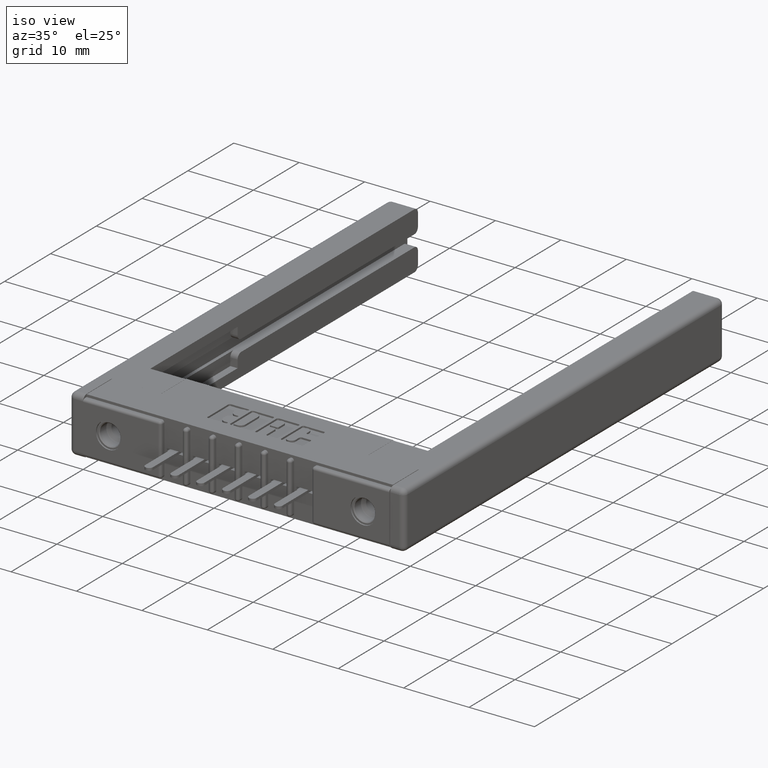
[diagram: clean part render]
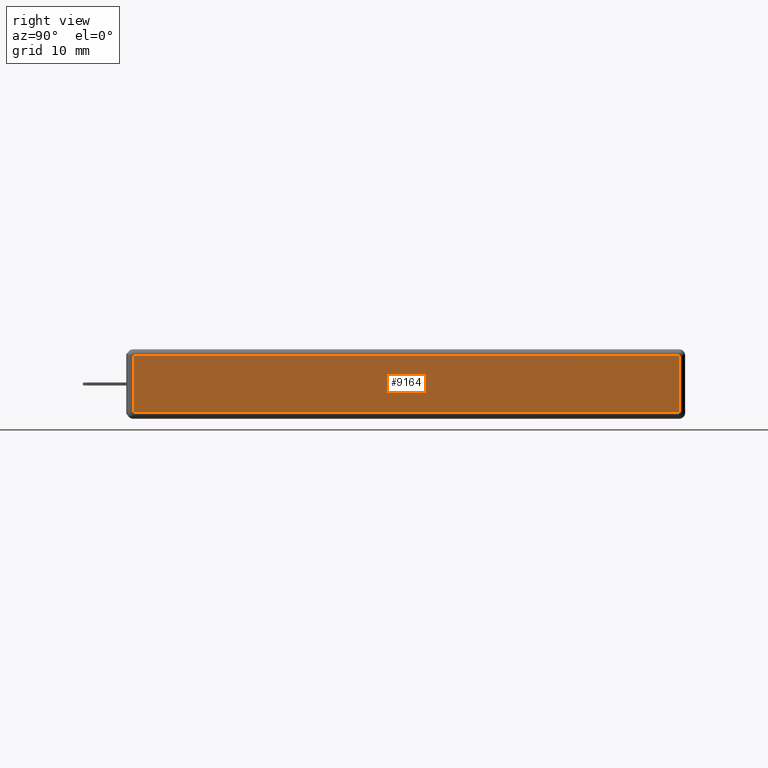
[diagram: tour spotlight — one face highlighted and labeled with its STEP entity id]
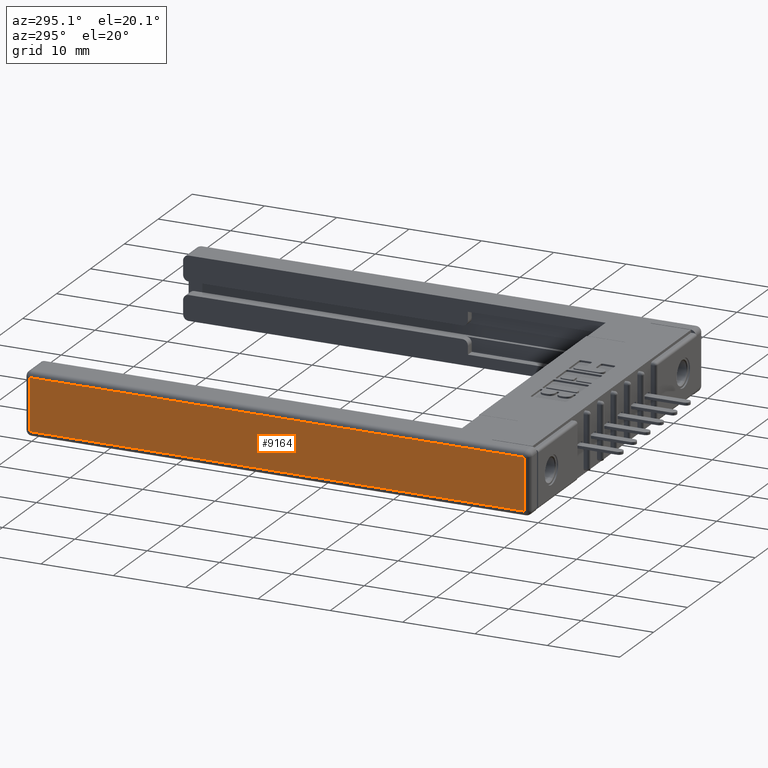
[diagram: tour spotlight — one face highlighted and labeled with its STEP entity id]
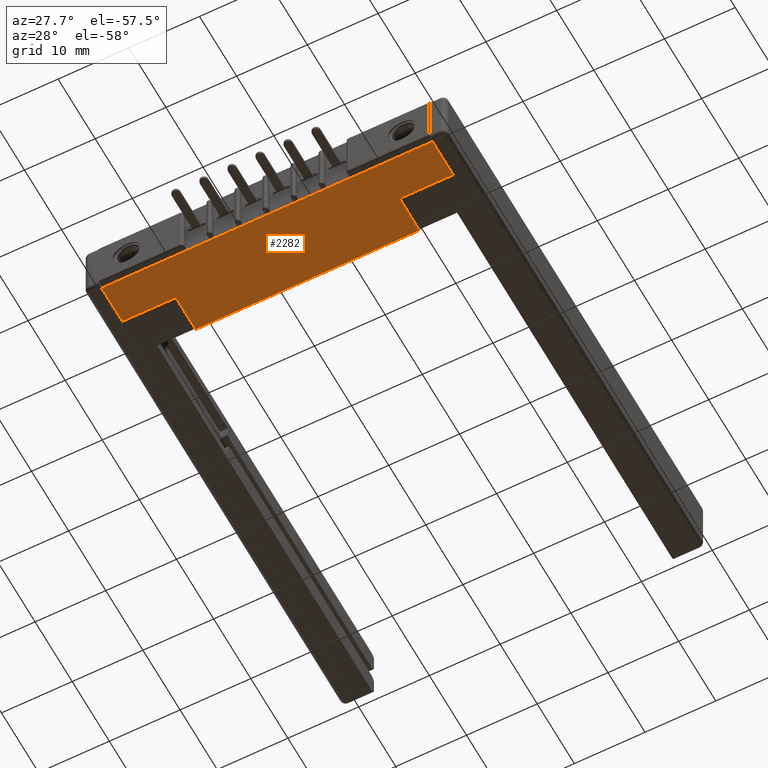
[diagram: tour spotlight — one face highlighted and labeled with its STEP entity id]
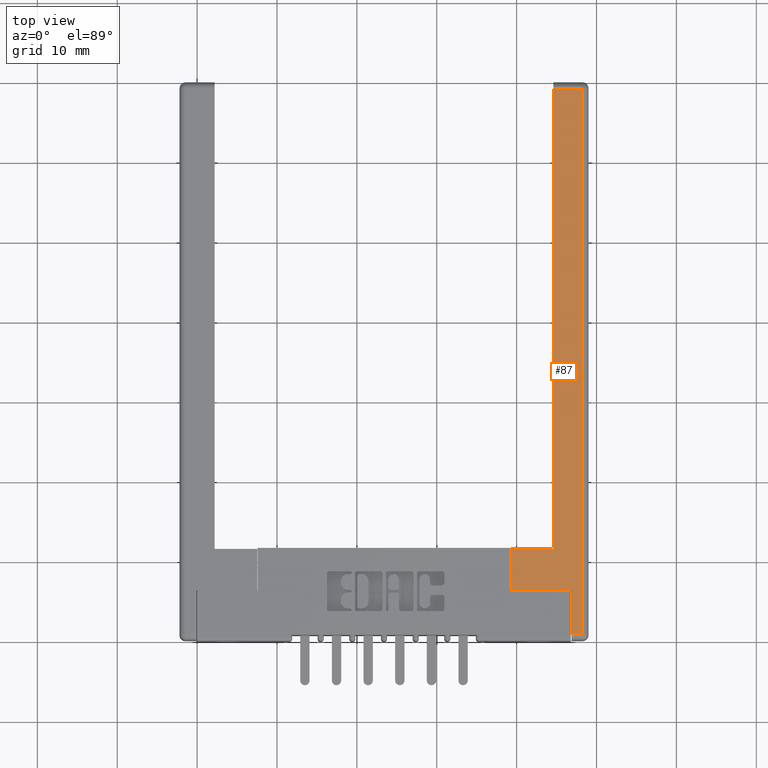
[diagram: tour spotlight — one face highlighted and labeled with its STEP entity id]
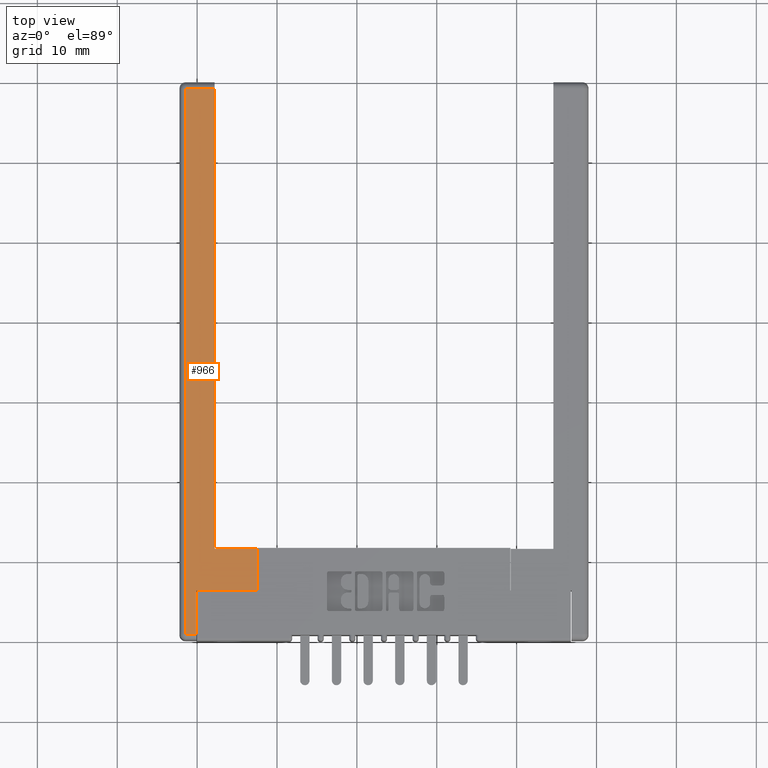
[diagram: tour spotlight — one face highlighted and labeled with its STEP entity id]
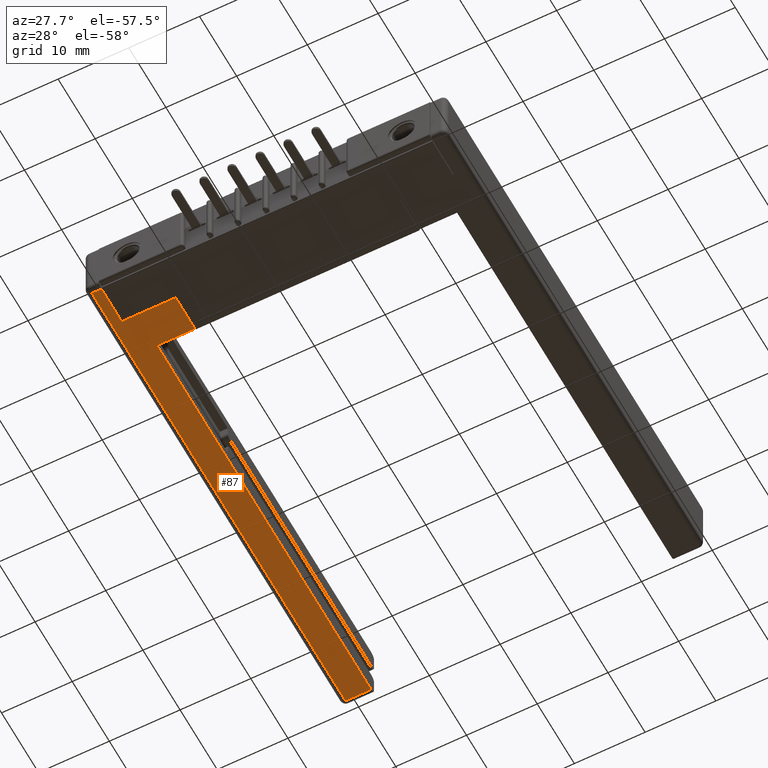
[diagram: tour spotlight — one face highlighted and labeled with its STEP entity id]
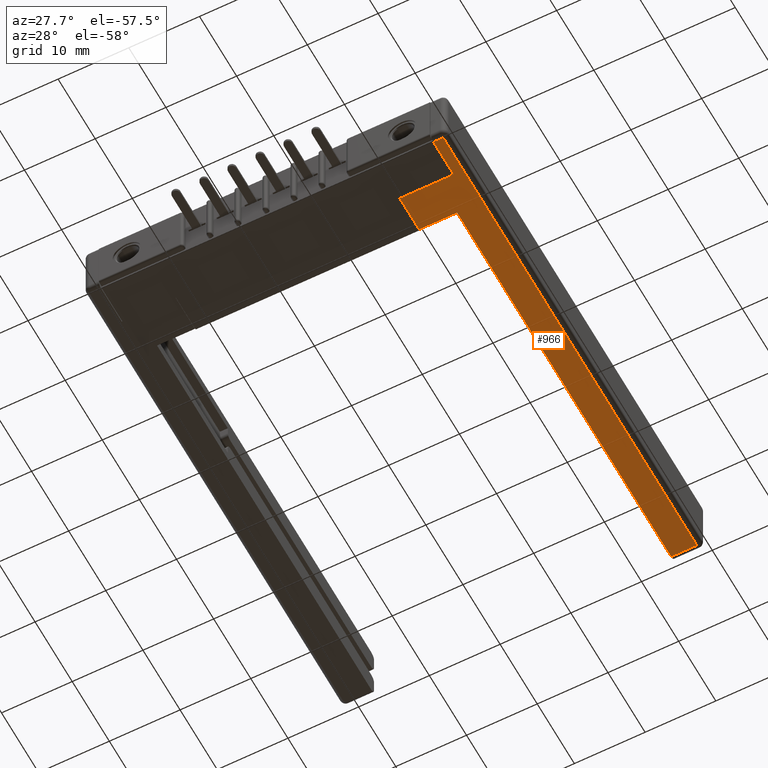
[diagram: tour spotlight — one face highlighted and labeled with its STEP entity id]
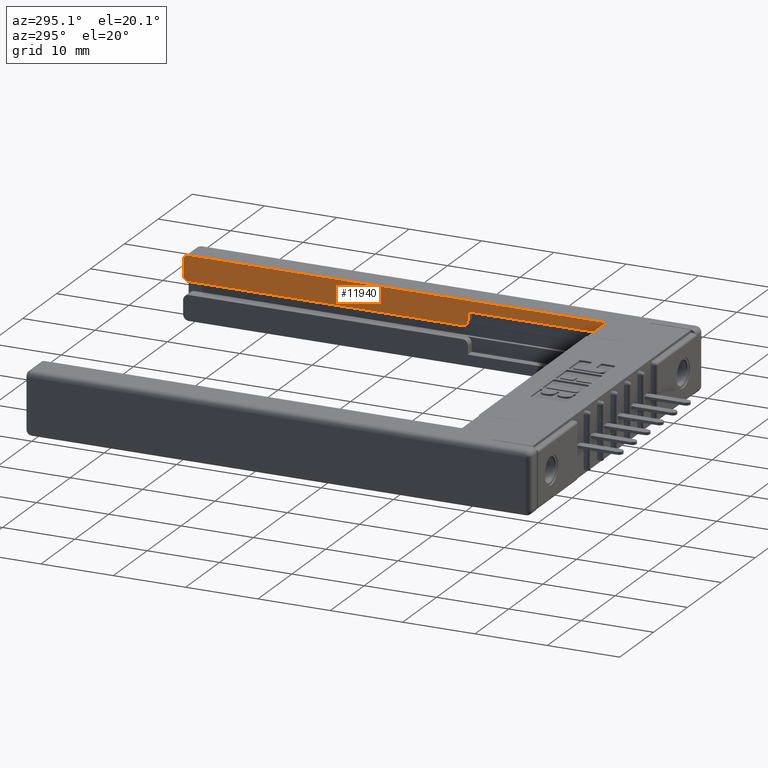
[diagram: tour spotlight — one face highlighted and labeled with its STEP entity id]
A machine part: a face-by-face anatomy tour. The part has 690 B-rep faces; the first image is the clean iso view, then the 8 largest visible faces are spotlighted one at a time (largest first), each with its STEP entity span.

Face 1 — right view, entity #9164. In plain terms, the highlighted planar face has unit normal (1, 0, 0).
Definition (entity closure, byte-faithful):
#17 = CARTESIAN_POINT ( 'NONE',  ( 0.0000000000000000000, 0.0000000000000000000, -0.3130000000000000000 ) ) ;
#331 = DIRECTION ( 'NONE',  ( -1.000000000000000000, 0.0000000000000000000, 0.0000000000000000000 ) ) ;
#859 = DIRECTION ( 'NONE',  ( -0.0000000000000000000, -0.0000000000000000000, -1.000000000000000000 ) ) ;
#1865 = CARTESIAN_POINT ( 'NONE',  ( 0.0000000000000000000, 0.02999999999999998800, -0.3430000000000000300 ) ) ;
#2248 = DIRECTION ( 'NONE',  ( -0.0000000000000000000, 1.000000000000000000, -0.0000000000000000000 ) ) ;
#2475 = LINE ( 'NONE', #2890, #5107 ) ;
#2548 = VERTEX_POINT ( 'NONE', #10000 ) ;
#2890 = CARTESIAN_POINT ( 'NONE',  ( 0.0000000000000000000, 2.750000000000000000, -0.02999999999999999900 ) ) ;
#3000 = DIRECTION ( 'NONE',  ( 0.0000000000000000000, -1.000000000000000000, 0.0000000000000000000 ) ) ;
#3475 = CARTESIAN_POINT ( 'NONE',  ( 0.0000000000000000000, 2.719999999999999800, -0.3430000000000000300 ) ) ;
#3516 = DIRECTION ( 'NONE',  ( 0.0000000000000000000, 0.0000000000000000000, 1.000000000000000000 ) ) ;
#3810 = VERTEX_POINT ( 'NONE', #6394 ) ;
#4163 = CARTESIAN_POINT ( 'NONE',  ( 0.0000000000000000000, 0.02999999999999998800, -0.02999999999999999900 ) ) ;
#4542 = EDGE_CURVE ( 'NONE', #3810, #5227, #10877, .T. ) ;
#4566 = EDGE_CURVE ( 'NONE', #5227, #8773, #7937, .T. ) ;
#4586 = EDGE_CURVE ( 'NONE', #8773, #2548, #2475, .T. ) ;
#4588 = EDGE_CURVE ( 'NONE', #2548, #3810, #7641, .T. ) ;
#5107 = VECTOR ( 'NONE', #2248, 39.37007874015748100 ) ;
#5227 = VERTEX_POINT ( 'NONE', #8668 ) ;
#5937 = PLANE ( 'NONE',  #11056 ) ;
#6394 = CARTESIAN_POINT ( 'NONE',  ( 0.0000000000000000000, 2.719999999999999800, -0.3130000000000000000 ) ) ;
#7641 = LINE ( 'NONE', #3475, #12381 ) ;
#7833 = DIRECTION ( 'NONE',  ( 0.0000000000000000000, 0.0000000000000000000, 1.000000000000000000 ) ) ;
#7937 = LINE ( 'NONE', #1865, #10538 ) ;
#8668 = CARTESIAN_POINT ( 'NONE',  ( 0.0000000000000000000, 0.02999999999999998800, -0.3130000000000000000 ) ) ;
#8773 = VERTEX_POINT ( 'NONE', #4163 ) ;
#9164 = ADVANCED_FACE ( 'NONE', ( #11247 ), #5937, .T. ) ;
#9746 = ORIENTED_EDGE ( 'NONE', *, *, #4542, .T. ) ;
#9776 = ORIENTED_EDGE ( 'NONE', *, *, #4566, .T. ) ;
#9806 = ORIENTED_EDGE ( 'NONE', *, *, #4586, .T. ) ;
#9868 = ORIENTED_EDGE ( 'NONE', *, *, #4588, .T. ) ;
#10000 = CARTESIAN_POINT ( 'NONE',  ( 0.0000000000000000000, 2.719999999999999800, -0.02999999999999999900 ) ) ;
#10538 = VECTOR ( 'NONE', #3516, 39.37007874015748100 ) ;
#10877 = LINE ( 'NONE', #17, #12835 ) ;
#11056 = AXIS2_PLACEMENT_3D ( 'NONE', #12499, #331, #7833 ) ;
#11247 = FACE_OUTER_BOUND ( 'NONE', #12658, .T. ) ;
#12381 = VECTOR ( 'NONE', #859, 39.37007874015748100 ) ;
#12499 = CARTESIAN_POINT ( 'NONE',  ( 0.0000000000000000000, 0.0000000000000000000, -0.3430000000000000300 ) ) ;
#12658 = EDGE_LOOP ( 'NONE', ( #9746, #9776, #9806, #9868 ) ) ;
#12835 = VECTOR ( 'NONE', #3000, 39.37007874015748100 ) ;

Face 2 — auxiliary view, entity #9164. In plain terms, the highlighted planar face has unit normal (-1, 0, 0).
Definition (entity closure, byte-faithful):
#17 = CARTESIAN_POINT ( 'NONE',  ( 0.0000000000000000000, 0.0000000000000000000, -0.3130000000000000000 ) ) ;
#331 = DIRECTION ( 'NONE',  ( -1.000000000000000000, 0.0000000000000000000, 0.0000000000000000000 ) ) ;
#859 = DIRECTION ( 'NONE',  ( -0.0000000000000000000, -0.0000000000000000000, -1.000000000000000000 ) ) ;
#1865 = CARTESIAN_POINT ( 'NONE',  ( 0.0000000000000000000, 0.02999999999999998800, -0.3430000000000000300 ) ) ;
#2248 = DIRECTION ( 'NONE',  ( -0.0000000000000000000, 1.000000000000000000, -0.0000000000000000000 ) ) ;
#2475 = LINE ( 'NONE', #2890, #5107 ) ;
#2548 = VERTEX_POINT ( 'NONE', #10000 ) ;
#2890 = CARTESIAN_POINT ( 'NONE',  ( 0.0000000000000000000, 2.750000000000000000, -0.02999999999999999900 ) ) ;
#3000 = DIRECTION ( 'NONE',  ( 0.0000000000000000000, -1.000000000000000000, 0.0000000000000000000 ) ) ;
#3475 = CARTESIAN_POINT ( 'NONE',  ( 0.0000000000000000000, 2.719999999999999800, -0.3430000000000000300 ) ) ;
#3516 = DIRECTION ( 'NONE',  ( 0.0000000000000000000, 0.0000000000000000000, 1.000000000000000000 ) ) ;
#3810 = VERTEX_POINT ( 'NONE', #6394 ) ;
#4163 = CARTESIAN_POINT ( 'NONE',  ( 0.0000000000000000000, 0.02999999999999998800, -0.02999999999999999900 ) ) ;
#4542 = EDGE_CURVE ( 'NONE', #3810, #5227, #10877, .T. ) ;
#4566 = EDGE_CURVE ( 'NONE', #5227, #8773, #7937, .T. ) ;
#4586 = EDGE_CURVE ( 'NONE', #8773, #2548, #2475, .T. ) ;
#4588 = EDGE_CURVE ( 'NONE', #2548, #3810, #7641, .T. ) ;
#5107 = VECTOR ( 'NONE', #2248, 39.37007874015748100 ) ;
#5227 = VERTEX_POINT ( 'NONE', #8668 ) ;
#5937 = PLANE ( 'NONE',  #11056 ) ;
#6394 = CARTESIAN_POINT ( 'NONE',  ( 0.0000000000000000000, 2.719999999999999800, -0.3130000000000000000 ) ) ;
#7641 = LINE ( 'NONE', #3475, #12381 ) ;
#7833 = DIRECTION ( 'NONE',  ( 0.0000000000000000000, 0.0000000000000000000, 1.000000000000000000 ) ) ;
#7937 = LINE ( 'NONE', #1865, #10538 ) ;
#8668 = CARTESIAN_POINT ( 'NONE',  ( 0.0000000000000000000, 0.02999999999999998800, -0.3130000000000000000 ) ) ;
#8773 = VERTEX_POINT ( 'NONE', #4163 ) ;
#9164 = ADVANCED_FACE ( 'NONE', ( #11247 ), #5937, .T. ) ;
#9746 = ORIENTED_EDGE ( 'NONE', *, *, #4542, .T. ) ;
#9776 = ORIENTED_EDGE ( 'NONE', *, *, #4566, .T. ) ;
#9806 = ORIENTED_EDGE ( 'NONE', *, *, #4586, .T. ) ;
#9868 = ORIENTED_EDGE ( 'NONE', *, *, #4588, .T. ) ;
#10000 = CARTESIAN_POINT ( 'NONE',  ( 0.0000000000000000000, 2.719999999999999800, -0.02999999999999999900 ) ) ;
#10538 = VECTOR ( 'NONE', #3516, 39.37007874015748100 ) ;
#10877 = LINE ( 'NONE', #17, #12835 ) ;
#11056 = AXIS2_PLACEMENT_3D ( 'NONE', #12499, #331, #7833 ) ;
#11247 = FACE_OUTER_BOUND ( 'NONE', #12658, .T. ) ;
#12381 = VECTOR ( 'NONE', #859, 39.37007874015748100 ) ;
#12499 = CARTESIAN_POINT ( 'NONE',  ( 0.0000000000000000000, 0.0000000000000000000, -0.3430000000000000300 ) ) ;
#12658 = EDGE_LOOP ( 'NONE', ( #9746, #9776, #9806, #9868 ) ) ;
#12835 = VECTOR ( 'NONE', #3000, 39.37007874015748100 ) ;

Face 3 — auxiliary view, entity #2282. In plain terms, the highlighted planar face has unit normal (0, 0, 1).
Definition (entity closure, byte-faithful):
#274 = CARTESIAN_POINT ( 'NONE',  ( 1.842000000000000700, 0.03100000000000000000, -0.3430000000000000300 ) ) ;
#343 = VECTOR ( 'NONE', #8788, 39.37007874015748100 ) ;
#947 = CARTESIAN_POINT ( 'NONE',  ( 1.544000000000000700, 0.2500000000000000600, -0.3430000000000000300 ) ) ;
#986 = ORIENTED_EDGE ( 'NONE', *, *, #11183, .T. ) ;
#1005 = VERTEX_POINT ( 'NONE', #7972 ) ;
#1106 = LINE ( 'NONE', #7745, #11684 ) ;
#1299 = ORIENTED_EDGE ( 'NONE', *, *, #11206, .T. ) ;
#1303 = CARTESIAN_POINT ( 'NONE',  ( 0.0000000000000000000, 0.4600000000000000200, -0.3430000000000000300 ) ) ;
#1481 = DIRECTION ( 'NONE',  ( -1.000000000000000000, -0.0000000000000000000, -0.0000000000000000000 ) ) ;
#2122 = DIRECTION ( 'NONE',  ( 1.000000000000000000, 0.0000000000000000000, -0.0000000000000000000 ) ) ;
#2200 = DIRECTION ( 'NONE',  ( 0.0000000000000000000, 0.0000000000000000000, 1.000000000000000000 ) ) ;
#2209 = AXIS2_PLACEMENT_3D ( 'NONE', #1303, #2200, #2122 ) ;
#2235 = VECTOR ( 'NONE', #2849, 39.37007874015748100 ) ;
#2282 = ADVANCED_FACE ( 'NONE', ( #10259 ), #5630, .F. ) ;
#2531 = CARTESIAN_POINT ( 'NONE',  ( 1.544000000000000700, 0.2500000000000000600, -0.3430000000000000300 ) ) ;
#2624 = ORIENTED_EDGE ( 'NONE', *, *, #6944, .F. ) ;
#2733 = DIRECTION ( 'NONE',  ( -0.0000000000000000000, 1.000000000000000000, -0.0000000000000000000 ) ) ;
#2849 = DIRECTION ( 'NONE',  ( -0.0000000000000000000, -1.000000000000000000, -0.0000000000000000000 ) ) ;
#2954 = VERTEX_POINT ( 'NONE', #947 ) ;
#3176 = DIRECTION ( 'NONE',  ( -1.000000000000000000, -0.0000000000000000000, -0.0000000000000000000 ) ) ;
#3566 = CARTESIAN_POINT ( 'NONE',  ( 0.0000000000000000000, 0.4600000000000000200, -0.3430000000000000300 ) ) ;
#3713 = DIRECTION ( 'NONE',  ( -0.0000000000000000000, 1.000000000000000000, -0.0000000000000000000 ) ) ;
#4233 = LINE ( 'NONE', #5256, #11691 ) ;
#4929 = CARTESIAN_POINT ( 'NONE',  ( 0.2979999999999999900, 0.2500000000000000600, -0.3430000000000000300 ) ) ;
#4939 = CARTESIAN_POINT ( 'NONE',  ( 0.0000000000000000000, 0.2500000000000000600, -0.3430000000000000300 ) ) ;
#5204 = EDGE_LOOP ( 'NONE', ( #2624, #10750, #6013, #5419, #986, #9476, #7779, #1299 ) ) ;
#5256 = CARTESIAN_POINT ( 'NONE',  ( 1.842000000000000700, 0.4600000000000000200, -0.3430000000000000300 ) ) ;
#5345 = CARTESIAN_POINT ( 'NONE',  ( 1.842000000000000700, 0.2500000000000000600, -0.3430000000000000300 ) ) ;
#5419 = ORIENTED_EDGE ( 'NONE', *, *, #10927, .T. ) ;
#5630 = PLANE ( 'NONE',  #2209 ) ;
#5690 = VERTEX_POINT ( 'NONE', #10097 ) ;
#5825 = LINE ( 'NONE', #9819, #2235 ) ;
#6013 = ORIENTED_EDGE ( 'NONE', *, *, #11182, .F. ) ;
#6554 = LINE ( 'NONE', #11686, #8493 ) ;
#6815 = DIRECTION ( 'NONE',  ( -1.000000000000000000, 0.0000000000000000000, 0.0000000000000000000 ) ) ;
#6944 = EDGE_CURVE ( 'NONE', #7827, #1005, #10858, .T. ) ;
#7125 = VECTOR ( 'NONE', #1481, 39.37007874015748100 ) ;
#7294 = CARTESIAN_POINT ( 'NONE',  ( 0.0000000000000000000, 0.2500000000000000600, -0.3430000000000000300 ) ) ;
#7356 = VERTEX_POINT ( 'NONE', #9493 ) ;
#7742 = LINE ( 'NONE', #2531, #12455 ) ;
#7745 = CARTESIAN_POINT ( 'NONE',  ( 1.842000000000000700, 0.2500000000000000600, -0.3430000000000000300 ) ) ;
#7779 = ORIENTED_EDGE ( 'NONE', *, *, #11203, .F. ) ;
#7827 = VERTEX_POINT ( 'NONE', #8204 ) ;
#7972 = CARTESIAN_POINT ( 'NONE',  ( 0.2979999999999998200, 0.4600000000000000200, -0.3430000000000000300 ) ) ;
#8204 = CARTESIAN_POINT ( 'NONE',  ( 1.544000000000000700, 0.4600000000000000200, -0.3430000000000000300 ) ) ;
#8235 = VECTOR ( 'NONE', #3176, 39.37007874015748100 ) ;
#8493 = VECTOR ( 'NONE', #2733, 39.37007874015748100 ) ;
#8787 = LINE ( 'NONE', #4939, #343 ) ;
#8788 = DIRECTION ( 'NONE',  ( -1.000000000000000000, -0.0000000000000000000, -0.0000000000000000000 ) ) ;
#8853 = VERTEX_POINT ( 'NONE', #5345 ) ;
#9379 = LINE ( 'NONE', #274, #7125 ) ;
#9476 = ORIENTED_EDGE ( 'NONE', *, *, #10860, .F. ) ;
#9493 = CARTESIAN_POINT ( 'NONE',  ( 0.0000000000000000000, 0.03100000000000000000, -0.3430000000000000300 ) ) ;
#9819 = CARTESIAN_POINT ( 'NONE',  ( 0.0000000000000000000, 0.4600000000000000200, -0.3430000000000000300 ) ) ;
#9842 = VERTEX_POINT ( 'NONE', #4929 ) ;
#10097 = CARTESIAN_POINT ( 'NONE',  ( 1.842000000000000700, 0.03100000000000000000, -0.3430000000000000300 ) ) ;
#10259 = FACE_OUTER_BOUND ( 'NONE', #5204, .T. ) ;
#10750 = ORIENTED_EDGE ( 'NONE', *, *, #11134, .F. ) ;
#10858 = LINE ( 'NONE', #3566, #8235 ) ;
#10860 = EDGE_CURVE ( 'NONE', #10980, #7356, #5825, .T. ) ;
#10927 = EDGE_CURVE ( 'NONE', #8853, #5690, #4233, .T. ) ;
#10980 = VERTEX_POINT ( 'NONE', #7294 ) ;
#11134 = EDGE_CURVE ( 'NONE', #2954, #7827, #7742, .T. ) ;
#11182 = EDGE_CURVE ( 'NONE', #8853, #2954, #1106, .T. ) ;
#11183 = EDGE_CURVE ( 'NONE', #5690, #7356, #9379, .T. ) ;
#11203 = EDGE_CURVE ( 'NONE', #9842, #10980, #8787, .T. ) ;
#11206 = EDGE_CURVE ( 'NONE', #9842, #1005, #6554, .T. ) ;
#11684 = VECTOR ( 'NONE', #6815, 39.37007874015748100 ) ;
#11686 = CARTESIAN_POINT ( 'NONE',  ( 0.2979999999999998200, 0.2500000000000000600, -0.3430000000000000300 ) ) ;
#11691 = VECTOR ( 'NONE', #12724, 39.37007874015748100 ) ;
#12455 = VECTOR ( 'NONE', #3713, 39.37007874015748100 ) ;
#12724 = DIRECTION ( 'NONE',  ( -0.0000000000000000000, -1.000000000000000000, -0.0000000000000000000 ) ) ;

Face 4 — top view, entity #87. In plain terms, the highlighted planar face has unit normal (-0, -0, 1).
Definition (entity closure, byte-faithful):
#87 = ADVANCED_FACE ( 'NONE', ( #12880 ), #3066, .T. ) ;
#355 = CARTESIAN_POINT ( 'NONE',  ( 0.08400000000000007500, 0.02999999999999998800, -0.3430000000000000300 ) ) ;
#363 = VERTEX_POINT ( 'NONE', #4547 ) ;
#408 = LINE ( 'NONE', #3321, #6006 ) ;
#1009 = DIRECTION ( 'NONE',  ( 1.000000000000000000, -0.0000000000000000000, -0.0000000000000000000 ) ) ;
#1171 = VECTOR ( 'NONE', #6449, 39.37007874015748100 ) ;
#1895 = AXIS2_PLACEMENT_3D ( 'NONE', #2698, #2416, #2873 ) ;
#2243 = CARTESIAN_POINT ( 'NONE',  ( 0.3840000000000000600, 0.4499999999999999600, -0.3430000000000000300 ) ) ;
#2416 = DIRECTION ( 'NONE',  ( 0.0000000000000000000, 0.0000000000000000000, -1.000000000000000000 ) ) ;
#2698 = CARTESIAN_POINT ( 'NONE',  ( 0.0000000000000000000, 0.0000000000000000000, -0.3430000000000000300 ) ) ;
#2847 = CARTESIAN_POINT ( 'NONE',  ( 0.1730000000000000400, 2.750000000000000000, -0.3430000000000000300 ) ) ;
#2866 = VECTOR ( 'NONE', #12552, 39.37007874015748100 ) ;
#2873 = DIRECTION ( 'NONE',  ( -1.000000000000000000, 0.0000000000000000000, -0.0000000000000000000 ) ) ;
#3066 = PLANE ( 'NONE',  #1895 ) ;
#3321 = CARTESIAN_POINT ( 'NONE',  ( 1.052570404932771800E-017, 0.02999999999999999900, -0.3430000000000000300 ) ) ;
#3584 = VECTOR ( 'NONE', #11251, 39.37007874015748100 ) ;
#3659 = VERTEX_POINT ( 'NONE', #8769 ) ;
#3981 = CARTESIAN_POINT ( 'NONE',  ( 0.02999999999999999900, 0.0000000000000000000, -0.3430000000000000300 ) ) ;
#4216 = EDGE_CURVE ( 'NONE', #363, #5697, #5716, .T. ) ;
#4242 = DIRECTION ( 'NONE',  ( -1.000000000000000000, 3.508568016442572800E-016, -0.0000000000000000000 ) ) ;
#4288 = VECTOR ( 'NONE', #7841, 39.37007874015748100 ) ;
#4380 = EDGE_CURVE ( 'NONE', #6388, #363, #5567, .T. ) ;
#4444 = EDGE_CURVE ( 'NONE', #5697, #4953, #12001, .T. ) ;
#4547 = CARTESIAN_POINT ( 'NONE',  ( 0.3840000000000000600, 0.4499999999999999600, -0.3430000000000000300 ) ) ;
#4685 = DIRECTION ( 'NONE',  ( -0.0000000000000000000, 1.000000000000000000, -0.0000000000000000000 ) ) ;
#4750 = EDGE_CURVE ( 'NONE', #9246, #6388, #9696, .T. ) ;
#4765 = EDGE_CURVE ( 'NONE', #12111, #9246, #9128, .T. ) ;
#4771 = EDGE_CURVE ( 'NONE', #3659, #5032, #8829, .T. ) ;
#4789 = EDGE_CURVE ( 'NONE', #5032, #4953, #6590, .T. ) ;
#4791 = EDGE_CURVE ( 'NONE', #12111, #3659, #408, .T. ) ;
#4953 = VERTEX_POINT ( 'NONE', #8089 ) ;
#5032 = VERTEX_POINT ( 'NONE', #8496 ) ;
#5567 = LINE ( 'NONE', #2243, #10382 ) ;
#5628 = CARTESIAN_POINT ( 'NONE',  ( 0.08400000000000004700, 0.2449999999999999400, -0.3430000000000000300 ) ) ;
#5697 = VERTEX_POINT ( 'NONE', #8692 ) ;
#5716 = LINE ( 'NONE', #12568, #2866 ) ;
#6006 = VECTOR ( 'NONE', #4242, 39.37007874015748100 ) ;
#6052 = CARTESIAN_POINT ( 'NONE',  ( 0.08400000000000004700, 0.2449999999999999400, -0.3430000000000000300 ) ) ;
#6388 = VERTEX_POINT ( 'NONE', #8238 ) ;
#6449 = DIRECTION ( 'NONE',  ( -1.393799996767481300E-016, 1.000000000000000000, -0.0000000000000000000 ) ) ;
#6467 = EDGE_LOOP ( 'NONE', ( #11653, #11704, #11723, #11848, #11918, #11964, #12015, #12051 ) ) ;
#6590 = LINE ( 'NONE', #7373, #11173 ) ;
#7373 = CARTESIAN_POINT ( 'NONE',  ( 0.0000000000000000000, 2.719999999999999800, -0.3430000000000000300 ) ) ;
#7841 = DIRECTION ( 'NONE',  ( -0.0000000000000000000, 1.000000000000000000, -0.0000000000000000000 ) ) ;
#8089 = CARTESIAN_POINT ( 'NONE',  ( 0.1730000000000000400, 2.719999999999999800, -0.3430000000000000300 ) ) ;
#8238 = CARTESIAN_POINT ( 'NONE',  ( 0.3840000000000000600, 0.2450000000000000000, -0.3430000000000000300 ) ) ;
#8496 = CARTESIAN_POINT ( 'NONE',  ( 0.02999999999999999900, 2.719999999999999800, -0.3430000000000000300 ) ) ;
#8692 = CARTESIAN_POINT ( 'NONE',  ( 0.1730000000000000400, 0.4499999999999999600, -0.3430000000000000300 ) ) ;
#8769 = CARTESIAN_POINT ( 'NONE',  ( 0.02999999999999999900, 0.02999999999999999200, -0.3430000000000000300 ) ) ;
#8829 = LINE ( 'NONE', #3981, #3584 ) ;
#9128 = LINE ( 'NONE', #5628, #1171 ) ;
#9246 = VERTEX_POINT ( 'NONE', #6052 ) ;
#9416 = VECTOR ( 'NONE', #11313, 39.37007874015748100 ) ;
#9696 = LINE ( 'NONE', #11697, #9416 ) ;
#10382 = VECTOR ( 'NONE', #4685, 39.37007874015748100 ) ;
#11173 = VECTOR ( 'NONE', #1009, 39.37007874015748100 ) ;
#11251 = DIRECTION ( 'NONE',  ( -0.0000000000000000000, 1.000000000000000000, -0.0000000000000000000 ) ) ;
#11313 = DIRECTION ( 'NONE',  ( 1.000000000000000000, 1.138269997360109700E-016, -0.0000000000000000000 ) ) ;
#11653 = ORIENTED_EDGE ( 'NONE', *, *, #4771, .T. ) ;
#11697 = CARTESIAN_POINT ( 'NONE',  ( 0.3840000000000000600, 0.2450000000000000000, -0.3430000000000000300 ) ) ;
#11704 = ORIENTED_EDGE ( 'NONE', *, *, #4789, .T. ) ;
#11723 = ORIENTED_EDGE ( 'NONE', *, *, #4444, .F. ) ;
#11848 = ORIENTED_EDGE ( 'NONE', *, *, #4216, .F. ) ;
#11918 = ORIENTED_EDGE ( 'NONE', *, *, #4380, .F. ) ;
#11964 = ORIENTED_EDGE ( 'NONE', *, *, #4750, .F. ) ;
#12001 = LINE ( 'NONE', #2847, #4288 ) ;
#12015 = ORIENTED_EDGE ( 'NONE', *, *, #4765, .F. ) ;
#12051 = ORIENTED_EDGE ( 'NONE', *, *, #4791, .T. ) ;
#12111 = VERTEX_POINT ( 'NONE', #355 ) ;
#12552 = DIRECTION ( 'NONE',  ( -1.000000000000000000, -0.0000000000000000000, -0.0000000000000000000 ) ) ;
#12568 = CARTESIAN_POINT ( 'NONE',  ( 0.1730000000000000400, 0.4499999999999999600, -0.3430000000000000300 ) ) ;
#12880 = FACE_OUTER_BOUND ( 'NONE', #6467, .T. ) ;

Face 5 — top view, entity #966. In plain terms, the highlighted planar face has unit normal (0, 0, -1).
Definition (entity closure, byte-faithful):
#227 = DIRECTION ( 'NONE',  ( -1.000000000000000000, 0.0000000000000000000, 0.0000000000000000000 ) ) ;
#342 = CARTESIAN_POINT ( 'NONE',  ( 0.08400000000000007500, 0.02999999999999998800, 0.0000000000000000000 ) ) ;
#452 = VERTEX_POINT ( 'NONE', #342 ) ;
#531 = CARTESIAN_POINT ( 'NONE',  ( 0.1730000000000000400, 2.750000000000000000, 0.0000000000000000000 ) ) ;
#966 = ADVANCED_FACE ( 'NONE', ( #9206 ), #10380, .F. ) ;
#1003 = VECTOR ( 'NONE', #11389, 39.37007874015748100 ) ;
#1374 = LINE ( 'NONE', #9484, #1003 ) ;
#1609 = VERTEX_POINT ( 'NONE', #4345 ) ;
#1853 = VERTEX_POINT ( 'NONE', #12719 ) ;
#2581 = CARTESIAN_POINT ( 'NONE',  ( 0.3840000000000000600, 0.4499999999999999600, 0.0000000000000000000 ) ) ;
#2785 = AXIS2_PLACEMENT_3D ( 'NONE', #7129, #3824, #4628 ) ;
#3756 = CARTESIAN_POINT ( 'NONE',  ( 0.0000000000000000000, 2.719999999999999800, 0.0000000000000000000 ) ) ;
#3824 = DIRECTION ( 'NONE',  ( 0.0000000000000000000, 0.0000000000000000000, -1.000000000000000000 ) ) ;
#3957 = DIRECTION ( 'NONE',  ( 0.0000000000000000000, -1.000000000000000000, 0.0000000000000000000 ) ) ;
#4308 = EDGE_CURVE ( 'NONE', #1609, #6940, #1374, .T. ) ;
#4345 = CARTESIAN_POINT ( 'NONE',  ( 0.3840000000000000600, 0.4499999999999999600, 0.0000000000000000000 ) ) ;
#4362 = EDGE_CURVE ( 'NONE', #11637, #1609, #12935, .T. ) ;
#4628 = DIRECTION ( 'NONE',  ( -1.000000000000000000, 0.0000000000000000000, -0.0000000000000000000 ) ) ;
#4693 = EDGE_CURVE ( 'NONE', #6940, #1853, #10699, .T. ) ;
#4724 = EDGE_CURVE ( 'NONE', #10209, #11637, #10037, .T. ) ;
#4769 = EDGE_CURVE ( 'NONE', #452, #10209, #11721, .T. ) ;
#4802 = EDGE_LOOP ( 'NONE', ( #12121, #12129, #12230, #12339, #12348, #12400, #12567, #12601 ) ) ;
#4809 = EDGE_CURVE ( 'NONE', #1853, #7892, #6308, .T. ) ;
#4812 = EDGE_CURVE ( 'NONE', #7892, #9814, #5693, .T. ) ;
#4829 = EDGE_CURVE ( 'NONE', #9814, #452, #12593, .T. ) ;
#5044 = CARTESIAN_POINT ( 'NONE',  ( 0.02999999999999999900, 0.0000000000000000000, 0.0000000000000000000 ) ) ;
#5405 = VECTOR ( 'NONE', #6667, 39.37007874015748100 ) ;
#5693 = LINE ( 'NONE', #5044, #12824 ) ;
#6232 = CARTESIAN_POINT ( 'NONE',  ( 0.1730000000000000400, 0.4499999999999999600, 0.0000000000000000000 ) ) ;
#6308 = LINE ( 'NONE', #3756, #8541 ) ;
#6461 = CARTESIAN_POINT ( 'NONE',  ( 0.08400000000000010200, 0.02999999999999997100, 0.0000000000000000000 ) ) ;
#6667 = DIRECTION ( 'NONE',  ( 1.000000000000000000, -3.508568016442572800E-016, 0.0000000000000000000 ) ) ;
#6940 = VERTEX_POINT ( 'NONE', #6232 ) ;
#7129 = CARTESIAN_POINT ( 'NONE',  ( 0.0000000000000000000, 0.0000000000000000000, 0.0000000000000000000 ) ) ;
#7181 = VECTOR ( 'NONE', #7402, 39.37007874015748100 ) ;
#7336 = CARTESIAN_POINT ( 'NONE',  ( 0.08400000000000004700, 0.2449999999999999400, 0.0000000000000000000 ) ) ;
#7402 = DIRECTION ( 'NONE',  ( 1.000000000000000000, 1.138269997360109700E-016, -0.0000000000000000000 ) ) ;
#7484 = VECTOR ( 'NONE', #7985, 39.37007874015748100 ) ;
#7892 = VERTEX_POINT ( 'NONE', #8336 ) ;
#7985 = DIRECTION ( 'NONE',  ( -0.0000000000000000000, 1.000000000000000000, -0.0000000000000000000 ) ) ;
#8336 = CARTESIAN_POINT ( 'NONE',  ( 0.02999999999999999900, 2.719999999999999800, 0.0000000000000000000 ) ) ;
#8402 = VECTOR ( 'NONE', #12566, 39.37007874015748100 ) ;
#8507 = DIRECTION ( 'NONE',  ( -1.393799996767481300E-016, 1.000000000000000000, -0.0000000000000000000 ) ) ;
#8541 = VECTOR ( 'NONE', #227, 39.37007874015748100 ) ;
#9206 = FACE_OUTER_BOUND ( 'NONE', #4802, .T. ) ;
#9484 = CARTESIAN_POINT ( 'NONE',  ( 0.1730000000000000400, 0.4499999999999999600, 0.0000000000000000000 ) ) ;
#9814 = VERTEX_POINT ( 'NONE', #12438 ) ;
#10037 = LINE ( 'NONE', #12616, #7181 ) ;
#10209 = VERTEX_POINT ( 'NONE', #10491 ) ;
#10380 = PLANE ( 'NONE',  #2785 ) ;
#10491 = CARTESIAN_POINT ( 'NONE',  ( 0.08400000000000004700, 0.2449999999999999400, 0.0000000000000000000 ) ) ;
#10699 = LINE ( 'NONE', #531, #7484 ) ;
#11389 = DIRECTION ( 'NONE',  ( -1.000000000000000000, -0.0000000000000000000, -0.0000000000000000000 ) ) ;
#11470 = VECTOR ( 'NONE', #8507, 39.37007874015748100 ) ;
#11637 = VERTEX_POINT ( 'NONE', #12980 ) ;
#11721 = LINE ( 'NONE', #7336, #11470 ) ;
#12121 = ORIENTED_EDGE ( 'NONE', *, *, #4693, .T. ) ;
#12129 = ORIENTED_EDGE ( 'NONE', *, *, #4809, .T. ) ;
#12230 = ORIENTED_EDGE ( 'NONE', *, *, #4812, .T. ) ;
#12339 = ORIENTED_EDGE ( 'NONE', *, *, #4829, .T. ) ;
#12348 = ORIENTED_EDGE ( 'NONE', *, *, #4769, .T. ) ;
#12400 = ORIENTED_EDGE ( 'NONE', *, *, #4724, .T. ) ;
#12438 = CARTESIAN_POINT ( 'NONE',  ( 0.02999999999999999900, 0.02999999999999998800, 0.0000000000000000000 ) ) ;
#12566 = DIRECTION ( 'NONE',  ( -0.0000000000000000000, 1.000000000000000000, -0.0000000000000000000 ) ) ;
#12567 = ORIENTED_EDGE ( 'NONE', *, *, #4362, .T. ) ;
#12593 = LINE ( 'NONE', #6461, #5405 ) ;
#12601 = ORIENTED_EDGE ( 'NONE', *, *, #4308, .T. ) ;
#12616 = CARTESIAN_POINT ( 'NONE',  ( 0.3840000000000000600, 0.2450000000000000000, 0.0000000000000000000 ) ) ;
#12719 = CARTESIAN_POINT ( 'NONE',  ( 0.1730000000000000400, 2.719999999999999800, 0.0000000000000000000 ) ) ;
#12824 = VECTOR ( 'NONE', #3957, 39.37007874015748100 ) ;
#12935 = LINE ( 'NONE', #2581, #8402 ) ;
#12980 = CARTESIAN_POINT ( 'NONE',  ( 0.3840000000000000600, 0.2450000000000000000, 0.0000000000000000000 ) ) ;

Face 6 — auxiliary view, entity #87. In plain terms, the highlighted planar face has unit normal (0, 0, -1).
Definition (entity closure, byte-faithful):
#87 = ADVANCED_FACE ( 'NONE', ( #12880 ), #3066, .T. ) ;
#355 = CARTESIAN_POINT ( 'NONE',  ( 0.08400000000000007500, 0.02999999999999998800, -0.3430000000000000300 ) ) ;
#363 = VERTEX_POINT ( 'NONE', #4547 ) ;
#408 = LINE ( 'NONE', #3321, #6006 ) ;
#1009 = DIRECTION ( 'NONE',  ( 1.000000000000000000, -0.0000000000000000000, -0.0000000000000000000 ) ) ;
#1171 = VECTOR ( 'NONE', #6449, 39.37007874015748100 ) ;
#1895 = AXIS2_PLACEMENT_3D ( 'NONE', #2698, #2416, #2873 ) ;
#2243 = CARTESIAN_POINT ( 'NONE',  ( 0.3840000000000000600, 0.4499999999999999600, -0.3430000000000000300 ) ) ;
#2416 = DIRECTION ( 'NONE',  ( 0.0000000000000000000, 0.0000000000000000000, -1.000000000000000000 ) ) ;
#2698 = CARTESIAN_POINT ( 'NONE',  ( 0.0000000000000000000, 0.0000000000000000000, -0.3430000000000000300 ) ) ;
#2847 = CARTESIAN_POINT ( 'NONE',  ( 0.1730000000000000400, 2.750000000000000000, -0.3430000000000000300 ) ) ;
#2866 = VECTOR ( 'NONE', #12552, 39.37007874015748100 ) ;
#2873 = DIRECTION ( 'NONE',  ( -1.000000000000000000, 0.0000000000000000000, -0.0000000000000000000 ) ) ;
#3066 = PLANE ( 'NONE',  #1895 ) ;
#3321 = CARTESIAN_POINT ( 'NONE',  ( 1.052570404932771800E-017, 0.02999999999999999900, -0.3430000000000000300 ) ) ;
#3584 = VECTOR ( 'NONE', #11251, 39.37007874015748100 ) ;
#3659 = VERTEX_POINT ( 'NONE', #8769 ) ;
#3981 = CARTESIAN_POINT ( 'NONE',  ( 0.02999999999999999900, 0.0000000000000000000, -0.3430000000000000300 ) ) ;
#4216 = EDGE_CURVE ( 'NONE', #363, #5697, #5716, .T. ) ;
#4242 = DIRECTION ( 'NONE',  ( -1.000000000000000000, 3.508568016442572800E-016, -0.0000000000000000000 ) ) ;
#4288 = VECTOR ( 'NONE', #7841, 39.37007874015748100 ) ;
#4380 = EDGE_CURVE ( 'NONE', #6388, #363, #5567, .T. ) ;
#4444 = EDGE_CURVE ( 'NONE', #5697, #4953, #12001, .T. ) ;
#4547 = CARTESIAN_POINT ( 'NONE',  ( 0.3840000000000000600, 0.4499999999999999600, -0.3430000000000000300 ) ) ;
#4685 = DIRECTION ( 'NONE',  ( -0.0000000000000000000, 1.000000000000000000, -0.0000000000000000000 ) ) ;
#4750 = EDGE_CURVE ( 'NONE', #9246, #6388, #9696, .T. ) ;
#4765 = EDGE_CURVE ( 'NONE', #12111, #9246, #9128, .T. ) ;
#4771 = EDGE_CURVE ( 'NONE', #3659, #5032, #8829, .T. ) ;
#4789 = EDGE_CURVE ( 'NONE', #5032, #4953, #6590, .T. ) ;
#4791 = EDGE_CURVE ( 'NONE', #12111, #3659, #408, .T. ) ;
#4953 = VERTEX_POINT ( 'NONE', #8089 ) ;
#5032 = VERTEX_POINT ( 'NONE', #8496 ) ;
#5567 = LINE ( 'NONE', #2243, #10382 ) ;
#5628 = CARTESIAN_POINT ( 'NONE',  ( 0.08400000000000004700, 0.2449999999999999400, -0.3430000000000000300 ) ) ;
#5697 = VERTEX_POINT ( 'NONE', #8692 ) ;
#5716 = LINE ( 'NONE', #12568, #2866 ) ;
#6006 = VECTOR ( 'NONE', #4242, 39.37007874015748100 ) ;
#6052 = CARTESIAN_POINT ( 'NONE',  ( 0.08400000000000004700, 0.2449999999999999400, -0.3430000000000000300 ) ) ;
#6388 = VERTEX_POINT ( 'NONE', #8238 ) ;
#6449 = DIRECTION ( 'NONE',  ( -1.393799996767481300E-016, 1.000000000000000000, -0.0000000000000000000 ) ) ;
#6467 = EDGE_LOOP ( 'NONE', ( #11653, #11704, #11723, #11848, #11918, #11964, #12015, #12051 ) ) ;
#6590 = LINE ( 'NONE', #7373, #11173 ) ;
#7373 = CARTESIAN_POINT ( 'NONE',  ( 0.0000000000000000000, 2.719999999999999800, -0.3430000000000000300 ) ) ;
#7841 = DIRECTION ( 'NONE',  ( -0.0000000000000000000, 1.000000000000000000, -0.0000000000000000000 ) ) ;
#8089 = CARTESIAN_POINT ( 'NONE',  ( 0.1730000000000000400, 2.719999999999999800, -0.3430000000000000300 ) ) ;
#8238 = CARTESIAN_POINT ( 'NONE',  ( 0.3840000000000000600, 0.2450000000000000000, -0.3430000000000000300 ) ) ;
#8496 = CARTESIAN_POINT ( 'NONE',  ( 0.02999999999999999900, 2.719999999999999800, -0.3430000000000000300 ) ) ;
#8692 = CARTESIAN_POINT ( 'NONE',  ( 0.1730000000000000400, 0.4499999999999999600, -0.3430000000000000300 ) ) ;
#8769 = CARTESIAN_POINT ( 'NONE',  ( 0.02999999999999999900, 0.02999999999999999200, -0.3430000000000000300 ) ) ;
#8829 = LINE ( 'NONE', #3981, #3584 ) ;
#9128 = LINE ( 'NONE', #5628, #1171 ) ;
#9246 = VERTEX_POINT ( 'NONE', #6052 ) ;
#9416 = VECTOR ( 'NONE', #11313, 39.37007874015748100 ) ;
#9696 = LINE ( 'NONE', #11697, #9416 ) ;
#10382 = VECTOR ( 'NONE', #4685, 39.37007874015748100 ) ;
#11173 = VECTOR ( 'NONE', #1009, 39.37007874015748100 ) ;
#11251 = DIRECTION ( 'NONE',  ( -0.0000000000000000000, 1.000000000000000000, -0.0000000000000000000 ) ) ;
#11313 = DIRECTION ( 'NONE',  ( 1.000000000000000000, 1.138269997360109700E-016, -0.0000000000000000000 ) ) ;
#11653 = ORIENTED_EDGE ( 'NONE', *, *, #4771, .T. ) ;
#11697 = CARTESIAN_POINT ( 'NONE',  ( 0.3840000000000000600, 0.2450000000000000000, -0.3430000000000000300 ) ) ;
#11704 = ORIENTED_EDGE ( 'NONE', *, *, #4789, .T. ) ;
#11723 = ORIENTED_EDGE ( 'NONE', *, *, #4444, .F. ) ;
#11848 = ORIENTED_EDGE ( 'NONE', *, *, #4216, .F. ) ;
#11918 = ORIENTED_EDGE ( 'NONE', *, *, #4380, .F. ) ;
#11964 = ORIENTED_EDGE ( 'NONE', *, *, #4750, .F. ) ;
#12001 = LINE ( 'NONE', #2847, #4288 ) ;
#12015 = ORIENTED_EDGE ( 'NONE', *, *, #4765, .F. ) ;
#12051 = ORIENTED_EDGE ( 'NONE', *, *, #4791, .T. ) ;
#12111 = VERTEX_POINT ( 'NONE', #355 ) ;
#12552 = DIRECTION ( 'NONE',  ( -1.000000000000000000, -0.0000000000000000000, -0.0000000000000000000 ) ) ;
#12568 = CARTESIAN_POINT ( 'NONE',  ( 0.1730000000000000400, 0.4499999999999999600, -0.3430000000000000300 ) ) ;
#12880 = FACE_OUTER_BOUND ( 'NONE', #6467, .T. ) ;

Face 7 — auxiliary view, entity #966. In plain terms, the highlighted planar face has unit normal (-0, -0, 1).
Definition (entity closure, byte-faithful):
#227 = DIRECTION ( 'NONE',  ( -1.000000000000000000, 0.0000000000000000000, 0.0000000000000000000 ) ) ;
#342 = CARTESIAN_POINT ( 'NONE',  ( 0.08400000000000007500, 0.02999999999999998800, 0.0000000000000000000 ) ) ;
#452 = VERTEX_POINT ( 'NONE', #342 ) ;
#531 = CARTESIAN_POINT ( 'NONE',  ( 0.1730000000000000400, 2.750000000000000000, 0.0000000000000000000 ) ) ;
#966 = ADVANCED_FACE ( 'NONE', ( #9206 ), #10380, .F. ) ;
#1003 = VECTOR ( 'NONE', #11389, 39.37007874015748100 ) ;
#1374 = LINE ( 'NONE', #9484, #1003 ) ;
#1609 = VERTEX_POINT ( 'NONE', #4345 ) ;
#1853 = VERTEX_POINT ( 'NONE', #12719 ) ;
#2581 = CARTESIAN_POINT ( 'NONE',  ( 0.3840000000000000600, 0.4499999999999999600, 0.0000000000000000000 ) ) ;
#2785 = AXIS2_PLACEMENT_3D ( 'NONE', #7129, #3824, #4628 ) ;
#3756 = CARTESIAN_POINT ( 'NONE',  ( 0.0000000000000000000, 2.719999999999999800, 0.0000000000000000000 ) ) ;
#3824 = DIRECTION ( 'NONE',  ( 0.0000000000000000000, 0.0000000000000000000, -1.000000000000000000 ) ) ;
#3957 = DIRECTION ( 'NONE',  ( 0.0000000000000000000, -1.000000000000000000, 0.0000000000000000000 ) ) ;
#4308 = EDGE_CURVE ( 'NONE', #1609, #6940, #1374, .T. ) ;
#4345 = CARTESIAN_POINT ( 'NONE',  ( 0.3840000000000000600, 0.4499999999999999600, 0.0000000000000000000 ) ) ;
#4362 = EDGE_CURVE ( 'NONE', #11637, #1609, #12935, .T. ) ;
#4628 = DIRECTION ( 'NONE',  ( -1.000000000000000000, 0.0000000000000000000, -0.0000000000000000000 ) ) ;
#4693 = EDGE_CURVE ( 'NONE', #6940, #1853, #10699, .T. ) ;
#4724 = EDGE_CURVE ( 'NONE', #10209, #11637, #10037, .T. ) ;
#4769 = EDGE_CURVE ( 'NONE', #452, #10209, #11721, .T. ) ;
#4802 = EDGE_LOOP ( 'NONE', ( #12121, #12129, #12230, #12339, #12348, #12400, #12567, #12601 ) ) ;
#4809 = EDGE_CURVE ( 'NONE', #1853, #7892, #6308, .T. ) ;
#4812 = EDGE_CURVE ( 'NONE', #7892, #9814, #5693, .T. ) ;
#4829 = EDGE_CURVE ( 'NONE', #9814, #452, #12593, .T. ) ;
#5044 = CARTESIAN_POINT ( 'NONE',  ( 0.02999999999999999900, 0.0000000000000000000, 0.0000000000000000000 ) ) ;
#5405 = VECTOR ( 'NONE', #6667, 39.37007874015748100 ) ;
#5693 = LINE ( 'NONE', #5044, #12824 ) ;
#6232 = CARTESIAN_POINT ( 'NONE',  ( 0.1730000000000000400, 0.4499999999999999600, 0.0000000000000000000 ) ) ;
#6308 = LINE ( 'NONE', #3756, #8541 ) ;
#6461 = CARTESIAN_POINT ( 'NONE',  ( 0.08400000000000010200, 0.02999999999999997100, 0.0000000000000000000 ) ) ;
#6667 = DIRECTION ( 'NONE',  ( 1.000000000000000000, -3.508568016442572800E-016, 0.0000000000000000000 ) ) ;
#6940 = VERTEX_POINT ( 'NONE', #6232 ) ;
#7129 = CARTESIAN_POINT ( 'NONE',  ( 0.0000000000000000000, 0.0000000000000000000, 0.0000000000000000000 ) ) ;
#7181 = VECTOR ( 'NONE', #7402, 39.37007874015748100 ) ;
#7336 = CARTESIAN_POINT ( 'NONE',  ( 0.08400000000000004700, 0.2449999999999999400, 0.0000000000000000000 ) ) ;
#7402 = DIRECTION ( 'NONE',  ( 1.000000000000000000, 1.138269997360109700E-016, -0.0000000000000000000 ) ) ;
#7484 = VECTOR ( 'NONE', #7985, 39.37007874015748100 ) ;
#7892 = VERTEX_POINT ( 'NONE', #8336 ) ;
#7985 = DIRECTION ( 'NONE',  ( -0.0000000000000000000, 1.000000000000000000, -0.0000000000000000000 ) ) ;
#8336 = CARTESIAN_POINT ( 'NONE',  ( 0.02999999999999999900, 2.719999999999999800, 0.0000000000000000000 ) ) ;
#8402 = VECTOR ( 'NONE', #12566, 39.37007874015748100 ) ;
#8507 = DIRECTION ( 'NONE',  ( -1.393799996767481300E-016, 1.000000000000000000, -0.0000000000000000000 ) ) ;
#8541 = VECTOR ( 'NONE', #227, 39.37007874015748100 ) ;
#9206 = FACE_OUTER_BOUND ( 'NONE', #4802, .T. ) ;
#9484 = CARTESIAN_POINT ( 'NONE',  ( 0.1730000000000000400, 0.4499999999999999600, 0.0000000000000000000 ) ) ;
#9814 = VERTEX_POINT ( 'NONE', #12438 ) ;
#10037 = LINE ( 'NONE', #12616, #7181 ) ;
#10209 = VERTEX_POINT ( 'NONE', #10491 ) ;
#10380 = PLANE ( 'NONE',  #2785 ) ;
#10491 = CARTESIAN_POINT ( 'NONE',  ( 0.08400000000000004700, 0.2449999999999999400, 0.0000000000000000000 ) ) ;
#10699 = LINE ( 'NONE', #531, #7484 ) ;
#11389 = DIRECTION ( 'NONE',  ( -1.000000000000000000, -0.0000000000000000000, -0.0000000000000000000 ) ) ;
#11470 = VECTOR ( 'NONE', #8507, 39.37007874015748100 ) ;
#11637 = VERTEX_POINT ( 'NONE', #12980 ) ;
#11721 = LINE ( 'NONE', #7336, #11470 ) ;
#12121 = ORIENTED_EDGE ( 'NONE', *, *, #4693, .T. ) ;
#12129 = ORIENTED_EDGE ( 'NONE', *, *, #4809, .T. ) ;
#12230 = ORIENTED_EDGE ( 'NONE', *, *, #4812, .T. ) ;
#12339 = ORIENTED_EDGE ( 'NONE', *, *, #4829, .T. ) ;
#12348 = ORIENTED_EDGE ( 'NONE', *, *, #4769, .T. ) ;
#12400 = ORIENTED_EDGE ( 'NONE', *, *, #4724, .T. ) ;
#12438 = CARTESIAN_POINT ( 'NONE',  ( 0.02999999999999999900, 0.02999999999999998800, 0.0000000000000000000 ) ) ;
#12566 = DIRECTION ( 'NONE',  ( -0.0000000000000000000, 1.000000000000000000, -0.0000000000000000000 ) ) ;
#12567 = ORIENTED_EDGE ( 'NONE', *, *, #4362, .T. ) ;
#12593 = LINE ( 'NONE', #6461, #5405 ) ;
#12601 = ORIENTED_EDGE ( 'NONE', *, *, #4308, .T. ) ;
#12616 = CARTESIAN_POINT ( 'NONE',  ( 0.3840000000000000600, 0.2450000000000000000, 0.0000000000000000000 ) ) ;
#12719 = CARTESIAN_POINT ( 'NONE',  ( 0.1730000000000000400, 2.719999999999999800, 0.0000000000000000000 ) ) ;
#12824 = VECTOR ( 'NONE', #3957, 39.37007874015748100 ) ;
#12935 = LINE ( 'NONE', #2581, #8402 ) ;
#12980 = CARTESIAN_POINT ( 'NONE',  ( 0.3840000000000000600, 0.2450000000000000000, 0.0000000000000000000 ) ) ;

Face 8 — auxiliary view, entity #11940. In plain terms, the highlighted planar face has unit normal (-1, -0, -0).
Definition (entity closure, byte-faithful):
#23 = VERTEX_POINT ( 'NONE', #11708 ) ;
#241 = DIRECTION ( 'NONE',  ( -0.0000000000000000000, -0.0000000000000000000, 1.000000000000000000 ) ) ;
#410 = DIRECTION ( 'NONE',  ( 0.0000000000000000000, 0.0000000000000000000, -1.000000000000000000 ) ) ;
#774 = AXIS2_PLACEMENT_3D ( 'NONE', #5196, #5595, #976 ) ;
#799 = AXIS2_PLACEMENT_3D ( 'NONE', #7729, #12641, #10641 ) ;
#841 = AXIS2_PLACEMENT_3D ( 'NONE', #9529, #1054, #410 ) ;
#976 = DIRECTION ( 'NONE',  ( 0.0000000000000000000, 0.0000000000000000000, -1.000000000000000000 ) ) ;
#1054 = DIRECTION ( 'NONE',  ( 1.000000000000000000, 0.0000000000000000000, -0.0000000000000000000 ) ) ;
#1088 = CARTESIAN_POINT ( 'NONE',  ( 0.1729999999999999600, 0.4499999999999999600, -0.2839999999999999200 ) ) ;
#1186 = CIRCLE ( 'NONE', #774, 0.02999999999999998800 ) ;
#1254 = DIRECTION ( 'NONE',  ( -1.365923996832131600E-016, 1.000000000000000000, 0.0000000000000000000 ) ) ;
#1406 = DIRECTION ( 'NONE',  ( 0.0000000000000000000, 0.0000000000000000000, 1.000000000000000000 ) ) ;
#1543 = VECTOR ( 'NONE', #1254, 39.37007874015748100 ) ;
#1630 = CARTESIAN_POINT ( 'NONE',  ( 0.1729999999999998800, 1.200000000000000000, -0.05899999999999993400 ) ) ;
#1912 = VERTEX_POINT ( 'NONE', #8361 ) ;
#1932 = CIRCLE ( 'NONE', #799, 0.03000000000000002300 ) ;
#2115 = VERTEX_POINT ( 'NONE', #4715 ) ;
#2295 = VECTOR ( 'NONE', #241, 39.37007874015748100 ) ;
#2567 = CARTESIAN_POINT ( 'NONE',  ( 0.1730000000000000400, 2.750000000000000000, -0.3430000000000000300 ) ) ;
#2703 = VERTEX_POINT ( 'NONE', #10278 ) ;
#2847 = CARTESIAN_POINT ( 'NONE',  ( 0.1730000000000000400, 2.750000000000000000, -0.3430000000000000300 ) ) ;
#3141 = CARTESIAN_POINT ( 'NONE',  ( 0.1730000000000000400, 2.750000000000000000, -0.3430000000000000300 ) ) ;
#3426 = VERTEX_POINT ( 'NONE', #8263 ) ;
#3615 = LINE ( 'NONE', #10846, #10550 ) ;
#3739 = DIRECTION ( 'NONE',  ( 1.000000000000000000, 0.0000000000000000000, -0.0000000000000000000 ) ) ;
#4218 = EDGE_CURVE ( 'NONE', #5697, #3426, #3615, .T. ) ;
#4288 = VECTOR ( 'NONE', #7841, 39.37007874015748100 ) ;
#4406 = EDGE_CURVE ( 'NONE', #2115, #12596, #10051, .T. ) ;
#4409 = EDGE_CURVE ( 'NONE', #2115, #2703, #12258, .T. ) ;
#4426 = EDGE_CURVE ( 'NONE', #7513, #2703, #9706, .T. ) ;
#4430 = EDGE_CURVE ( 'NONE', #3426, #7513, #7192, .T. ) ;
#4444 = EDGE_CURVE ( 'NONE', #5697, #4953, #12001, .T. ) ;
#4446 = EDGE_CURVE ( 'NONE', #4953, #23, #1932, .T. ) ;
#4451 = EDGE_CURVE ( 'NONE', #23, #1912, #6896, .T. ) ;
#4470 = EDGE_CURVE ( 'NONE', #1912, #12596, #1186, .T. ) ;
#4715 = CARTESIAN_POINT ( 'NONE',  ( 0.1729999999999998800, 1.229999999999999800, -0.2070000000000001000 ) ) ;
#4953 = VERTEX_POINT ( 'NONE', #8089 ) ;
#4957 = VECTOR ( 'NONE', #12951, 39.37007874015748100 ) ;
#4969 = CARTESIAN_POINT ( 'NONE',  ( 0.1729999999999999600, 0.4500000000000001200, -0.2070000000000000700 ) ) ;
#5006 = DIRECTION ( 'NONE',  ( 0.0000000000000000000, 0.0000000000000000000, 1.000000000000000000 ) ) ;
#5196 = CARTESIAN_POINT ( 'NONE',  ( 0.1730000000000000400, 2.719999999999999800, -0.2370000000000001500 ) ) ;
#5595 = DIRECTION ( 'NONE',  ( 1.000000000000000000, 0.0000000000000000000, -0.0000000000000000000 ) ) ;
#5697 = VERTEX_POINT ( 'NONE', #8692 ) ;
#5953 = FACE_OUTER_BOUND ( 'NONE', #6502, .T. ) ;
#6440 = CARTESIAN_POINT ( 'NONE',  ( 0.1729999999999998800, 1.200000000000000000, -0.2839999999999999200 ) ) ;
#6502 = EDGE_LOOP ( 'NONE', ( #8868, #8930, #8966, #9097, #9146, #9186, #9235, #9293, #9384 ) ) ;
#6896 = LINE ( 'NONE', #3141, #9141 ) ;
#7192 = LINE ( 'NONE', #1088, #1543 ) ;
#7513 = VERTEX_POINT ( 'NONE', #6440 ) ;
#7687 = PLANE ( 'NONE',  #11004 ) ;
#7729 = CARTESIAN_POINT ( 'NONE',  ( 0.1730000000000000400, 2.719999999999999800, -0.3130000000000000000 ) ) ;
#7841 = DIRECTION ( 'NONE',  ( -0.0000000000000000000, 1.000000000000000000, -0.0000000000000000000 ) ) ;
#8089 = CARTESIAN_POINT ( 'NONE',  ( 0.1730000000000000400, 2.719999999999999800, -0.3430000000000000300 ) ) ;
#8263 = CARTESIAN_POINT ( 'NONE',  ( 0.1729999999999999600, 0.4499999999999999600, -0.2839999999999999200 ) ) ;
#8361 = CARTESIAN_POINT ( 'NONE',  ( 0.1730000000000000400, 2.750000000000000000, -0.2370000000000001500 ) ) ;
#8692 = CARTESIAN_POINT ( 'NONE',  ( 0.1730000000000000400, 0.4499999999999999600, -0.3430000000000000300 ) ) ;
#8868 = ORIENTED_EDGE ( 'NONE', *, *, #4406, .F. ) ;
#8930 = ORIENTED_EDGE ( 'NONE', *, *, #4409, .T. ) ;
#8966 = ORIENTED_EDGE ( 'NONE', *, *, #4426, .F. ) ;
#9097 = ORIENTED_EDGE ( 'NONE', *, *, #4430, .F. ) ;
#9141 = VECTOR ( 'NONE', #1406, 39.37007874015748100 ) ;
#9146 = ORIENTED_EDGE ( 'NONE', *, *, #4218, .F. ) ;
#9186 = ORIENTED_EDGE ( 'NONE', *, *, #4444, .T. ) ;
#9235 = ORIENTED_EDGE ( 'NONE', *, *, #4446, .T. ) ;
#9293 = ORIENTED_EDGE ( 'NONE', *, *, #4451, .T. ) ;
#9384 = ORIENTED_EDGE ( 'NONE', *, *, #4470, .T. ) ;
#9529 = CARTESIAN_POINT ( 'NONE',  ( 0.1730000000000000400, 1.230000000000000000, -0.2370000000000001000 ) ) ;
#9706 = LINE ( 'NONE', #1630, #2295 ) ;
#10051 = LINE ( 'NONE', #4969, #4957 ) ;
#10278 = CARTESIAN_POINT ( 'NONE',  ( 0.1729999999999998800, 1.200000000000000000, -0.2370000000000001000 ) ) ;
#10304 = CARTESIAN_POINT ( 'NONE',  ( 0.1729999999999997100, 2.719999999999999300, -0.2070000000000001800 ) ) ;
#10550 = VECTOR ( 'NONE', #5006, 39.37007874015748100 ) ;
#10639 = DIRECTION ( 'NONE',  ( -0.0000000000000000000, 0.0000000000000000000, -1.000000000000000000 ) ) ;
#10641 = DIRECTION ( 'NONE',  ( 0.0000000000000000000, 0.0000000000000000000, -1.000000000000000000 ) ) ;
#10846 = CARTESIAN_POINT ( 'NONE',  ( 0.1730000000000000400, 0.4499999999999999600, -0.3430000000000000300 ) ) ;
#11004 = AXIS2_PLACEMENT_3D ( 'NONE', #2567, #3739, #10639 ) ;
#11708 = CARTESIAN_POINT ( 'NONE',  ( 0.1730000000000000400, 2.750000000000000000, -0.3130000000000000000 ) ) ;
#11940 = ADVANCED_FACE ( 'NONE', ( #5953 ), #7687, .T. ) ;
#12001 = LINE ( 'NONE', #2847, #4288 ) ;
#12258 = CIRCLE ( 'NONE', #841, 0.02999999999999998800 ) ;
#12596 = VERTEX_POINT ( 'NONE', #10304 ) ;
#12641 = DIRECTION ( 'NONE',  ( 1.000000000000000000, 0.0000000000000000000, -0.0000000000000000000 ) ) ;
#12951 = DIRECTION ( 'NONE',  ( -1.187759997245332100E-016, 1.000000000000000000, -4.454099989669995600E-017 ) ) ;